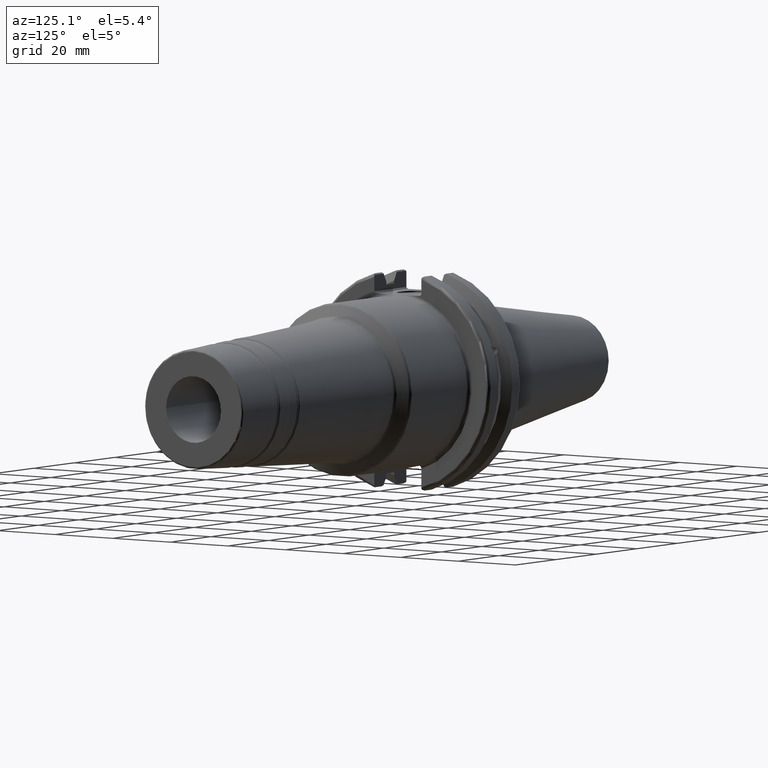
[diagram: clean part render]
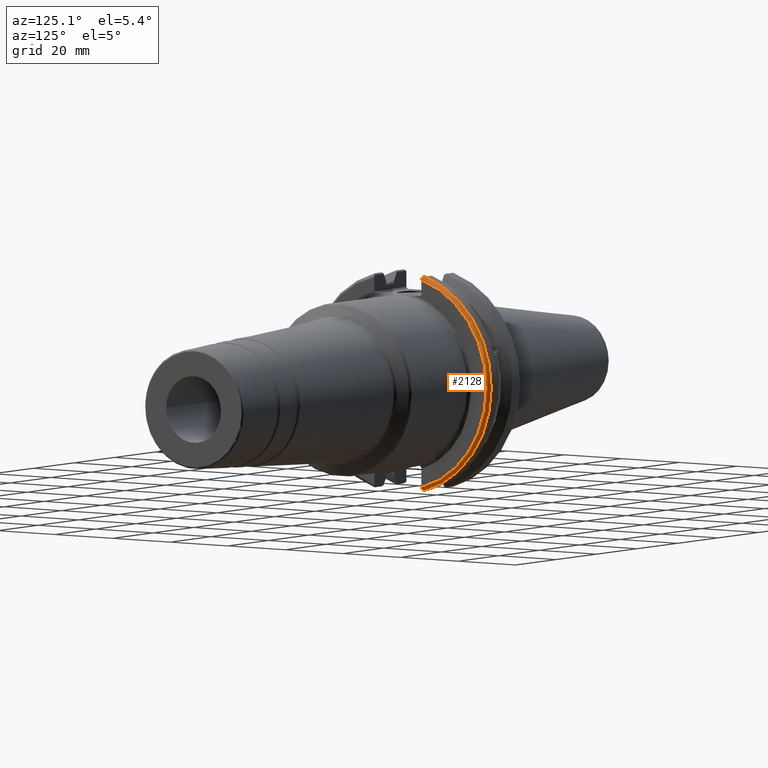
[diagram: same view with one face highlighted and labeled with its STEP entity id]
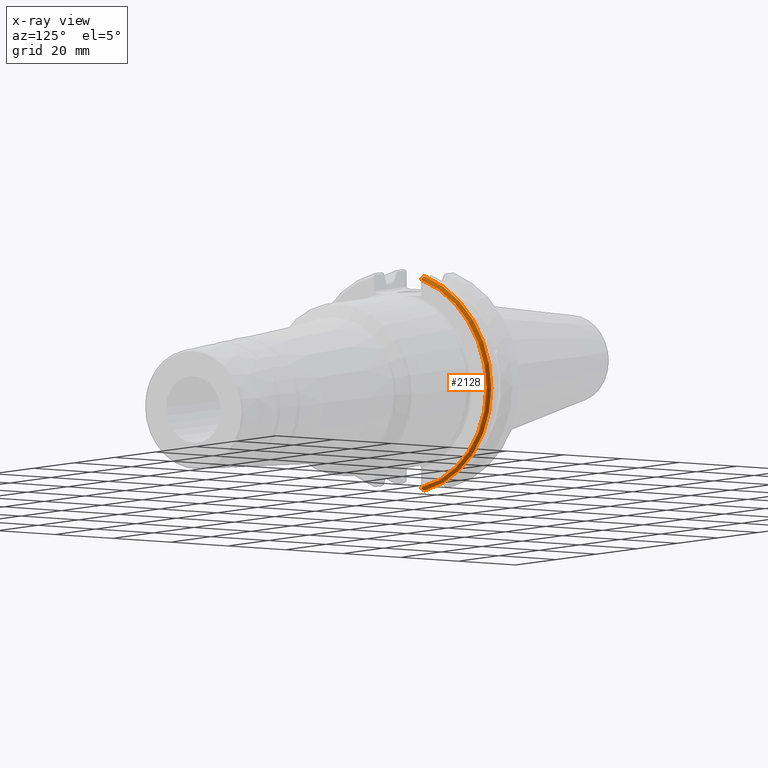
[diagram: x-ray of the same camera — body ghosted, the highlighted face saturated]
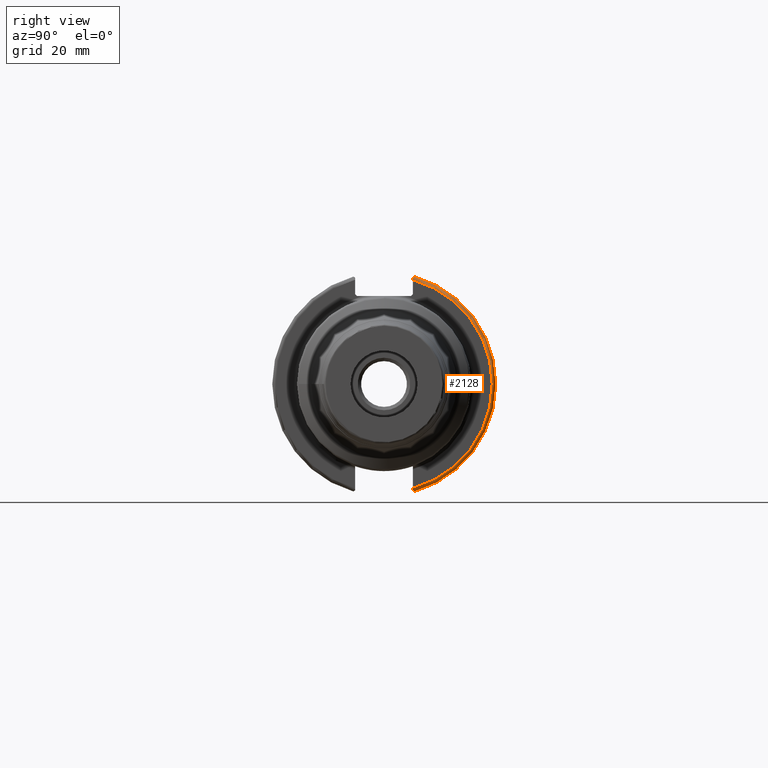
[diagram: same view with one face highlighted and labeled with its STEP entity id]
A machine part, auxiliary view. The second image highlights one B-rep face of the part: STEP entity #2128.
The next image is the same camera in x-ray: the body ghosted, the highlighted face saturated — about 0% of this face is hidden behind the body in this view.
A second angle (right view) of the same face is appended — the face is thin or edge-on in the first view.
In plain terms, the highlighted toroidal blend (fillet) surface has major radius 30.75 mm and minor (blend) radius 1 mm.
Its self-contained STEP definition (entity closure, byte-faithful):
#98=TOROIDAL_SURFACE('',#2415,30.75,1.);
#158=B_SPLINE_CURVE_WITH_KNOTS('',3,(#3930,#3931,#3932,#3933,#3934,#3935),
 .UNSPECIFIED.,.F.,.F.,(4,2,4),(0.0977210450333169,0.111963554372601,0.150804064902975),
 .UNSPECIFIED.);
#159=B_SPLINE_CURVE_WITH_KNOTS('',3,(#3937,#3938,#3939,#3940,#3941,#3942),
 .UNSPECIFIED.,.F.,.F.,(4,2,4),(0.452741154494497,0.491581665024871,0.505824174364157),
 .UNSPECIFIED.);
#160=B_SPLINE_CURVE_WITH_KNOTS('',3,(#3944,#3945,#3946,#3947,#3948,#3949,
#3950,#3951),.UNSPECIFIED.,.F.,.F.,(4,2,2,4),(-0.104302157163828,-0.0778717450894463,
-0.0364423539742873,0.),.UNSPECIFIED.);
#161=B_SPLINE_CURVE_WITH_KNOTS('',3,(#3954,#3955,#3956,#3957,#3958,#3959,
#3960,#3961),.UNSPECIFIED.,.F.,.F.,(4,2,2,4),(0.,0.0343524753874978,0.0729784742461449,
0.104180282751877),.UNSPECIFIED.);
#239=FACE_OUTER_BOUND('',#357,.T.);
#357=EDGE_LOOP('',(#1799,#1800,#1801,#1802,#1803,#1804));
#690=CIRCLE('',#2310,30.75);
#742=CIRCLE('',#2416,31.75);
#863=VERTEX_POINT('',#3534);
#864=VERTEX_POINT('',#3536);
#965=VERTEX_POINT('',#3929);
#966=VERTEX_POINT('',#3936);
#967=VERTEX_POINT('',#3943);
#968=VERTEX_POINT('',#3952);
#1133=EDGE_CURVE('',#864,#863,#690,.T.);
#1265=EDGE_CURVE('',#965,#864,#158,.T.);
#1266=EDGE_CURVE('',#863,#966,#159,.T.);
#1267=EDGE_CURVE('',#966,#967,#160,.T.);
#1268=EDGE_CURVE('',#967,#968,#742,.T.);
#1269=EDGE_CURVE('',#968,#965,#161,.T.);
#1799=ORIENTED_EDGE('',*,*,#1265,.T.);
#1800=ORIENTED_EDGE('',*,*,#1133,.T.);
#1801=ORIENTED_EDGE('',*,*,#1266,.T.);
#1802=ORIENTED_EDGE('',*,*,#1267,.T.);
#1803=ORIENTED_EDGE('',*,*,#1268,.T.);
#1804=ORIENTED_EDGE('',*,*,#1269,.T.);
#2128=ADVANCED_FACE('',(#239),#98,.T.);
#2310=AXIS2_PLACEMENT_3D('',#3537,#2751,#2752);
#2415=AXIS2_PLACEMENT_3D('',#3928,#3005,#3006);
#2416=AXIS2_PLACEMENT_3D('',#3953,#3007,#3008);
#2751=DIRECTION('center_axis',(-1.,0.,0.));
#2752=DIRECTION('ref_axis',(0.,1.,-6.12323399573677E-17));
#3005=DIRECTION('center_axis',(1.,0.,0.));
#3006=DIRECTION('ref_axis',(0.,0.,-1.));
#3007=DIRECTION('center_axis',(1.,0.,0.));
#3008=DIRECTION('ref_axis',(0.,1.,-6.12323399573677E-17));
#3534=CARTESIAN_POINT('',(19.05,8.19,-29.6392712461019));
#3536=CARTESIAN_POINT('',(19.05,8.19,29.6392712461019));
#3537=CARTESIAN_POINT('Origin',(19.05,0.,0.));
#3928=CARTESIAN_POINT('Origin',(18.05,0.,0.));
#3929=CARTESIAN_POINT('',(18.9058722749097,8.19,30.1755016258903));
#3930=CARTESIAN_POINT('Ctrl Pts',(18.9058722749097,8.19,30.1755016258903));
#3931=CARTESIAN_POINT('Ctrl Pts',(18.9318163728133,8.19,30.131014531546));
#3932=CARTESIAN_POINT('Ctrl Pts',(18.9539643471756,8.19,30.0852355256475));
#3933=CARTESIAN_POINT('Ctrl Pts',(19.020485567083,8.19,29.9212724384851));
#3934=CARTESIAN_POINT('Ctrl Pts',(19.05,8.19,29.7687396145364));
#3935=CARTESIAN_POINT('Ctrl Pts',(19.05,8.19,29.6392712461019));
#3936=CARTESIAN_POINT('',(18.9058722749097,8.19,-30.1755016258903));
#3937=CARTESIAN_POINT('Ctrl Pts',(19.05,8.19,-29.6392712461019));
#3938=CARTESIAN_POINT('Ctrl Pts',(19.05,8.19,-29.7687396145364));
#3939=CARTESIAN_POINT('Ctrl Pts',(19.0204855670831,8.19,-29.9212724384851));
#3940=CARTESIAN_POINT('Ctrl Pts',(18.9539643471756,8.19,-30.0852355256475));
#3941=CARTESIAN_POINT('Ctrl Pts',(18.9318163728133,8.19,-30.131014531546));
#3942=CARTESIAN_POINT('Ctrl Pts',(18.9058722749097,8.19,-30.1755016258903));
#3943=CARTESIAN_POINT('',(18.05,8.67204822802685,-30.5427254764662));
#3944=CARTESIAN_POINT('Ctrl Pts',(18.9058722749097,8.19,-30.1755016258903));
#3945=CARTESIAN_POINT('Ctrl Pts',(18.8644673620074,8.25871605728282,-30.2278494485451));
#3946=CARTESIAN_POINT('Ctrl Pts',(18.8119751533981,8.32529543089522,-30.2785695477496));
#3947=CARTESIAN_POINT('Ctrl Pts',(18.6711011886212,8.46607530335799,-30.3858155116254));
#3948=CARTESIAN_POINT('Ctrl Pts',(18.545044361706,8.551646780666,-30.4510037761381));
#3949=CARTESIAN_POINT('Ctrl Pts',(18.3129472218859,8.64410239894262,-30.5214363722497));
#3950=CARTESIAN_POINT('Ctrl Pts',(18.1714745132476,8.67204822802685,-30.5427254764662));
#3951=CARTESIAN_POINT('Ctrl Pts',(18.05,8.67204822802685,-30.5427254764662));
#3952=CARTESIAN_POINT('',(18.05,8.67204822802685,30.5427254764662));
#3953=CARTESIAN_POINT('Origin',(18.05,0.,0.));
#3954=CARTESIAN_POINT('Ctrl Pts',(18.05,8.67204822802685,30.5427254764662));
#3955=CARTESIAN_POINT('Ctrl Pts',(18.1645082512917,8.67204822802685,30.5427254764662));
#3956=CARTESIAN_POINT('Ctrl Pts',(18.2983170433775,8.6471881193939,30.5237870709558));
#3957=CARTESIAN_POINT('Ctrl Pts',(18.5184414294771,8.56482138642532,30.4610401774263));
#3958=CARTESIAN_POINT('Ctrl Pts',(18.6396724190507,8.48862804755883,30.4029961692546));
#3959=CARTESIAN_POINT('Ctrl Pts',(18.7926702662319,8.34909446036477,30.2966996242308));
#3960=CARTESIAN_POINT('Ctrl Pts',(18.8574463042989,8.27036828330781,30.2367261024977));
#3961=CARTESIAN_POINT('Ctrl Pts',(18.9058722749097,8.19,30.1755016258903));